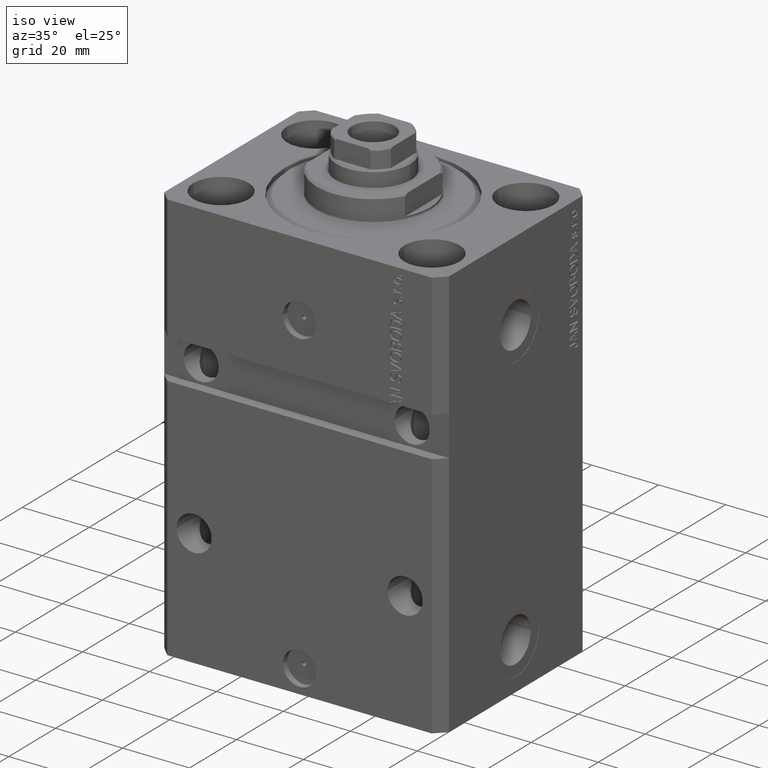
[diagram: clean part render]
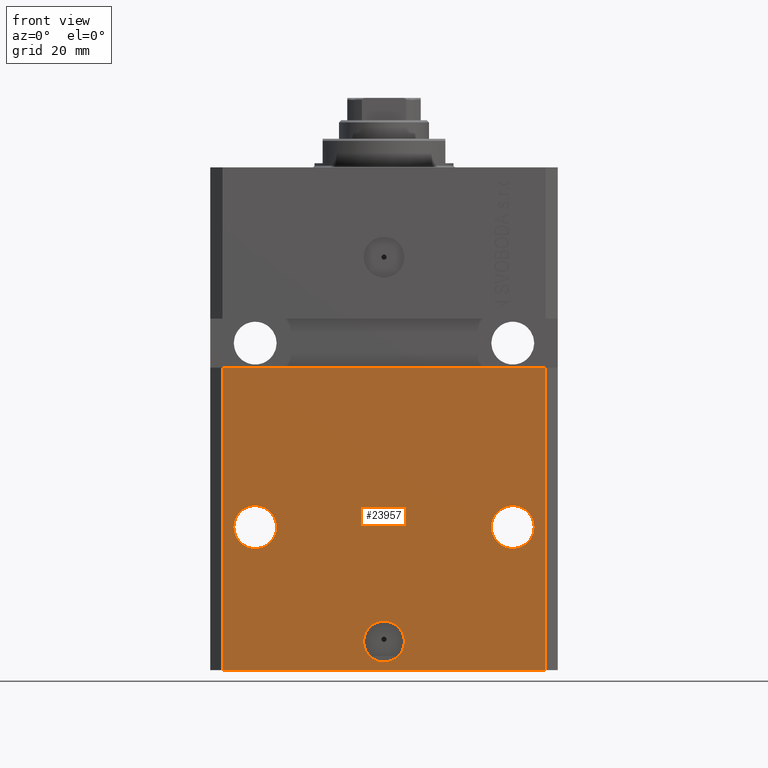
[diagram: tour spotlight — one face highlighted and labeled with its STEP entity id]
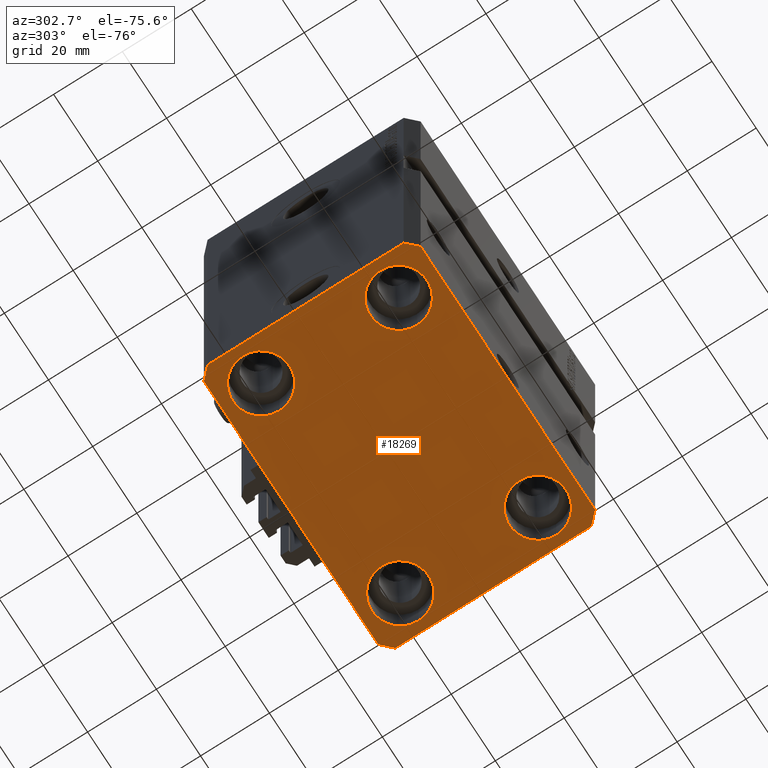
[diagram: tour spotlight — one face highlighted and labeled with its STEP entity id]
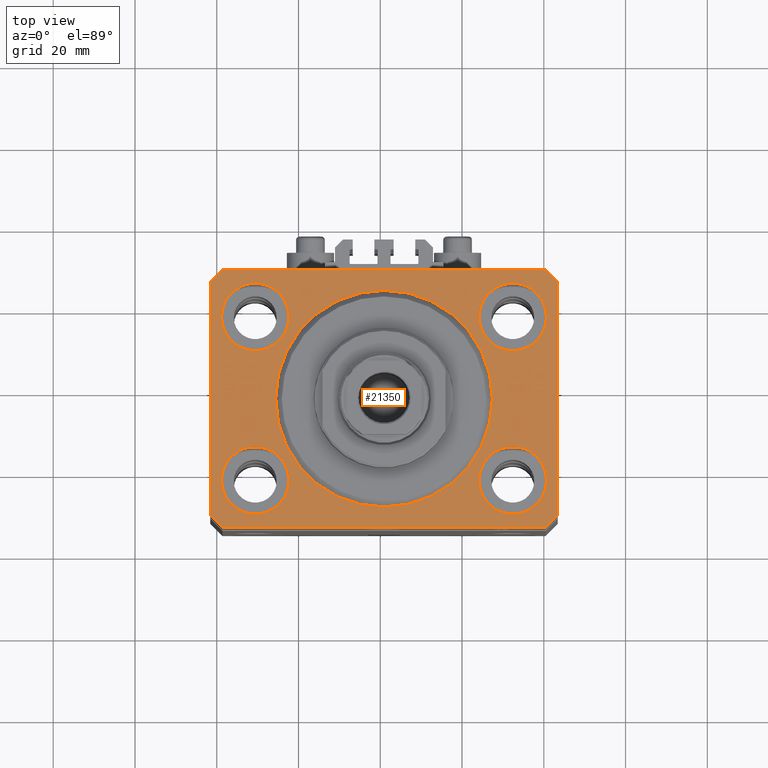
[diagram: tour spotlight — one face highlighted and labeled with its STEP entity id]
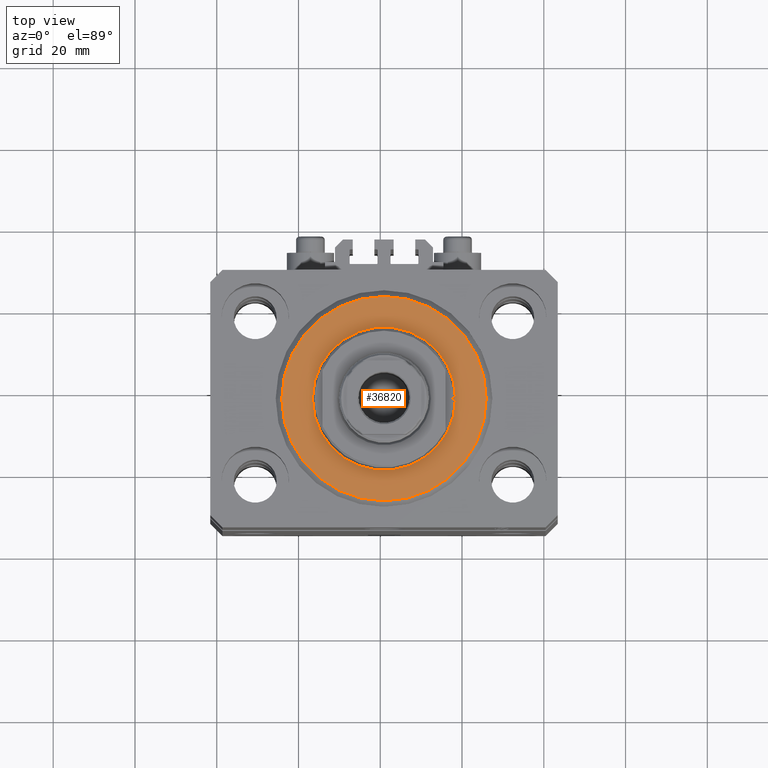
[diagram: tour spotlight — one face highlighted and labeled with its STEP entity id]
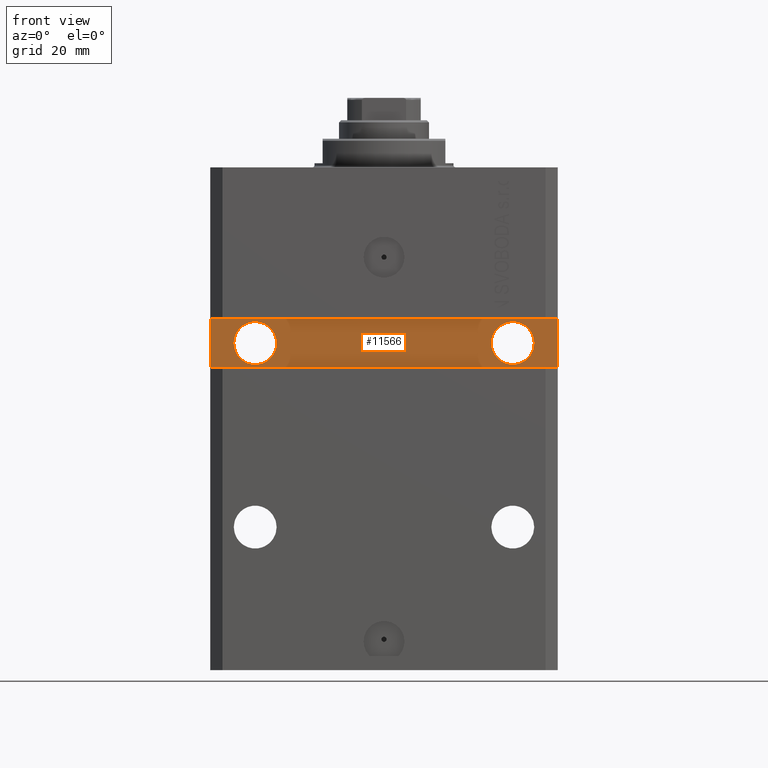
[diagram: tour spotlight — one face highlighted and labeled with its STEP entity id]
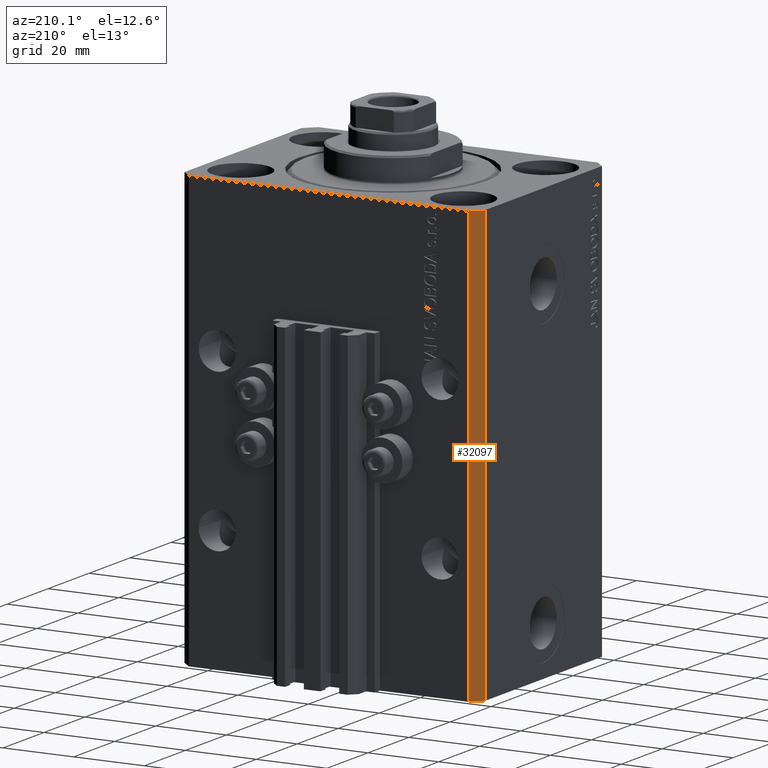
[diagram: tour spotlight — one face highlighted and labeled with its STEP entity id]
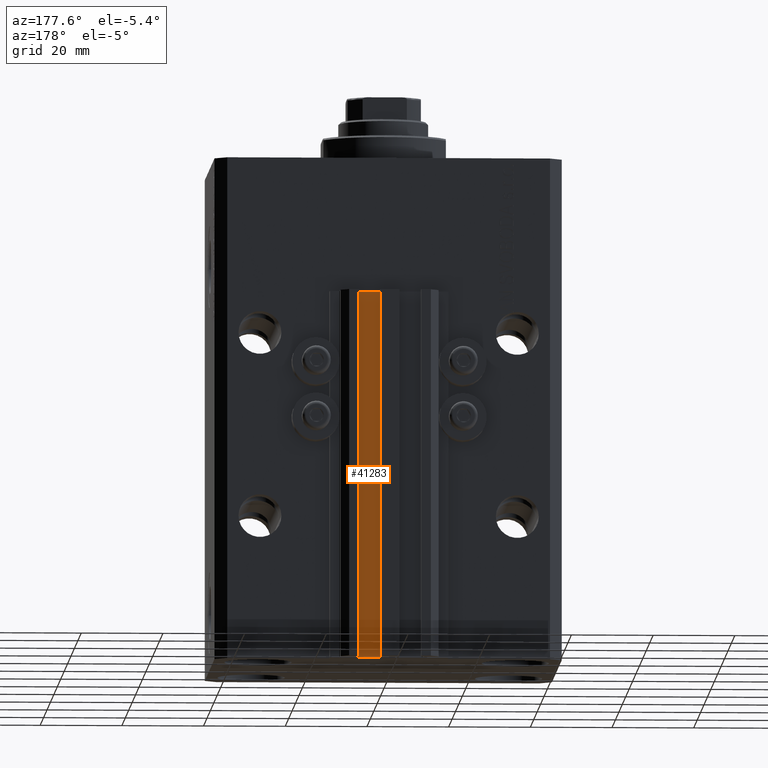
[diagram: tour spotlight — one face highlighted and labeled with its STEP entity id]
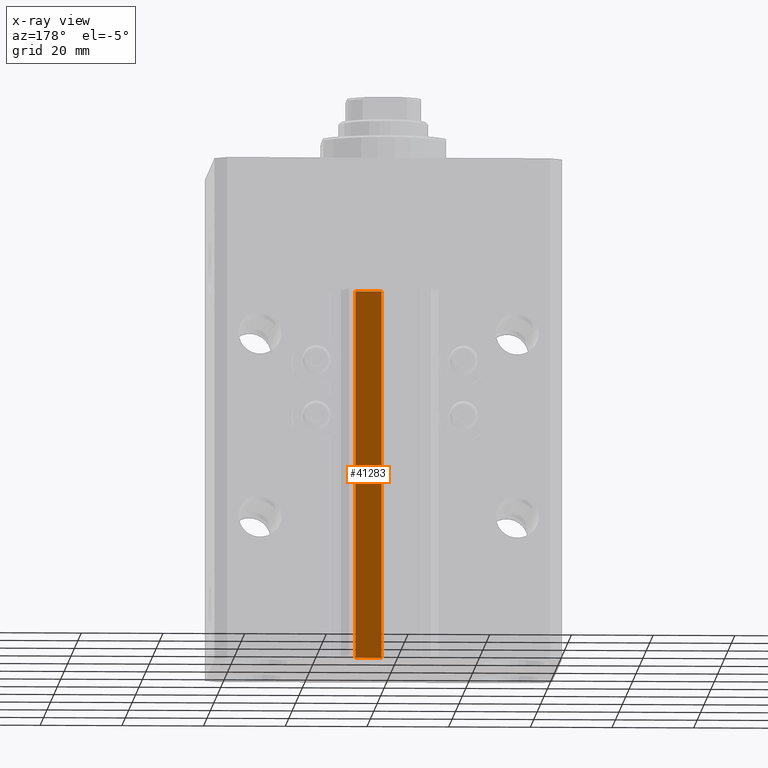
[diagram: x-ray of the same camera — body ghosted, this tour face saturated]
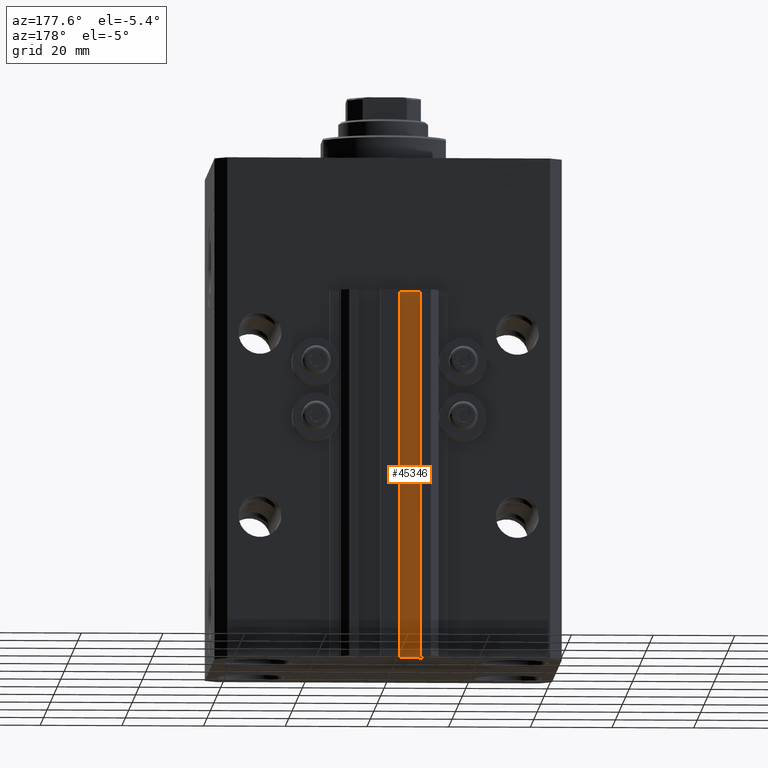
[diagram: tour spotlight — one face highlighted and labeled with its STEP entity id]
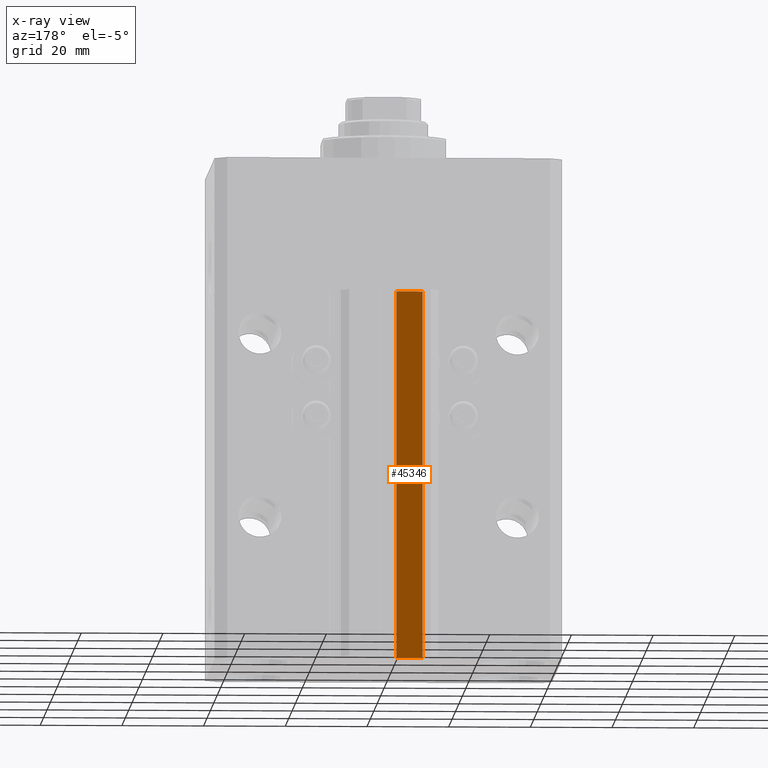
[diagram: x-ray of the same camera — body ghosted, this tour face saturated]
A machine part: a face-by-face anatomy tour. The part has 1123 B-rep faces; the first image is the clean iso view, then the 8 largest visible faces are spotlighted one at a time (largest first), each with its STEP entity span.

Face 1 — front view, entity #23957. In plain terms, the highlighted planar face has unit normal (0, -1, 0).
Definition (entity closure, byte-faithful):
#449 = FACE_BOUND ( 'NONE', #35979, .T. ) ;
#878 = CIRCLE ( 'NONE', #19730, 5.249999999999997335 ) ;
#958 = AXIS2_PLACEMENT_3D ( 'NONE', #14286, #29783, #13809 ) ;
#1396 = VERTEX_POINT ( 'NONE', #4002 ) ;
#3035 = ORIENTED_EDGE ( 'NONE', *, *, #15015, .F. ) ;
#3785 = CARTESIAN_POINT ( 'NONE',  ( -31.50000000000001421, -31.50000000000000711, -88.00000000000000000 ) ) ;
#4002 = CARTESIAN_POINT ( 'NONE',  ( 36.75000000000001421, -31.49999999999999289, -88.00000000000000000 ) ) ;
#4346 = EDGE_CURVE ( 'NONE', #21004, #5934, #15466, .T. ) ;
#5028 = AXIS2_PLACEMENT_3D ( 'NONE', #3785, #29595, #11396 ) ;
#5934 = VERTEX_POINT ( 'NONE', #12399 ) ;
#7787 = AXIS2_PLACEMENT_3D ( 'NONE', #28179, #31407, #42966 ) ;
#8191 = EDGE_LOOP ( 'NONE', ( #3035, #19538 ) ) ;
#8284 = CARTESIAN_POINT ( 'NONE',  ( -31.50000000000001421, -31.50000000000000711, -88.00000000000000000 ) ) ;
#8554 = CARTESIAN_POINT ( 'NONE',  ( -39.50000000000000711, -31.50000000000000000, -123.0000000000000000 ) ) ;
#9351 = EDGE_CURVE ( 'NONE', #36908, #42533, #33871, .T. ) ;
#9419 = EDGE_CURVE ( 'NONE', #40679, #28496, #878, .T. ) ;
#9873 = DIRECTION ( 'NONE',  ( 1.000000000000000000, 0.000000000000000000, 0.000000000000000000 ) ) ;
#11137 = CARTESIAN_POINT ( 'NONE',  ( -26.25000000000001776, -31.50000000000000711, -88.00000000000000000 ) ) ;
#11223 = DIRECTION ( 'NONE',  ( -1.000000000000000000, 0.000000000000000000, 0.000000000000000000 ) ) ;
#11396 = DIRECTION ( 'NONE',  ( -1.000000000000000000, 0.000000000000000000, 0.000000000000000000 ) ) ;
#11695 = EDGE_LOOP ( 'NONE', ( #33981, #22455 ) ) ;
#11747 = AXIS2_PLACEMENT_3D ( 'NONE', #20092, #19601, #46641 ) ;
#11940 = CIRCLE ( 'NONE', #958, 5.249999999999997335 ) ;
#12399 = CARTESIAN_POINT ( 'NONE',  ( -39.50000000000000000, -31.50000000000000711, -48.99999999999999289 ) ) ;
#13675 = EDGE_CURVE ( 'NONE', #18573, #20759, #40290, .T. ) ;
#13809 = DIRECTION ( 'NONE',  ( 1.000000000000000000, 0.000000000000000000, 0.000000000000000000 ) ) ;
#14286 = CARTESIAN_POINT ( 'NONE',  ( 31.50000000000001421, -31.49999999999999289, -88.00000000000000000 ) ) ;
#15015 = EDGE_CURVE ( 'NONE', #28496, #40679, #42737, .T. ) ;
#15447 = FACE_BOUND ( 'NONE', #8191, .T. ) ;
#15466 = LINE ( 'NONE', #48419, #21226 ) ;
#15543 = ORIENTED_EDGE ( 'NONE', *, *, #34785, .T. ) ;
#16598 = ORIENTED_EDGE ( 'NONE', *, *, #39903, .F. ) ;
#17175 = CARTESIAN_POINT ( 'NONE',  ( 39.50000000000000711, -31.50000000000000000, -123.0000000000000000 ) ) ;
#17219 = DIRECTION ( 'NONE',  ( 1.000000000000000000, 0.000000000000000000, 0.000000000000000000 ) ) ;
#17229 = EDGE_CURVE ( 'NONE', #5934, #20759, #29986, .T. ) ;
#17458 = CARTESIAN_POINT ( 'NONE',  ( 0.000000000000000000, -31.50000000000000000, -115.9999999999999858 ) ) ;
#18573 = VERTEX_POINT ( 'NONE', #27766 ) ;
#19327 = VECTOR ( 'NONE', #41805, 1000.000000000000000 ) ;
#19538 = ORIENTED_EDGE ( 'NONE', *, *, #9419, .F. ) ;
#19601 = DIRECTION ( 'NONE',  ( 1.176083712526788232E-16, -1.000000000000000000, 0.000000000000000000 ) ) ;
#19730 = AXIS2_PLACEMENT_3D ( 'NONE', #8284, #45921, #11223 ) ;
#20092 = CARTESIAN_POINT ( 'NONE',  ( 31.50000000000001421, -31.49999999999999289, -88.00000000000000000 ) ) ;
#20634 = VECTOR ( 'NONE', #25028, 1000.000000000000000 ) ;
#20759 = VERTEX_POINT ( 'NONE', #34918 ) ;
#21004 = VERTEX_POINT ( 'NONE', #29185 ) ;
#21226 = VECTOR ( 'NONE', #44980, 1000.000000000000000 ) ;
#21391 = DIRECTION ( 'NONE',  ( 1.176083712526788232E-16, -1.000000000000000000, 0.000000000000000000 ) ) ;
#22455 = ORIENTED_EDGE ( 'NONE', *, *, #41065, .F. ) ;
#23069 = PLANE ( 'NONE',  #29288 ) ;
#23957 = ADVANCED_FACE ( 'NONE', ( #449, #38827, #15447, #41523 ), #23069, .T. ) ;
#25028 = DIRECTION ( 'NONE',  ( 0.000000000000000000, 0.000000000000000000, 1.000000000000000000 ) ) ;
#25588 = CARTESIAN_POINT ( 'NONE',  ( -39.50000000000000711, -31.50000000000000000, -123.0000000000000000 ) ) ;
#27388 = EDGE_LOOP ( 'NONE', ( #27434, #35310, #15543, #45869 ) ) ;
#27434 = ORIENTED_EDGE ( 'NONE', *, *, #17229, .F. ) ;
#27766 = CARTESIAN_POINT ( 'NONE',  ( 39.50000000000000711, -31.50000000000000000, -123.0000000000000000 ) ) ;
#28179 = CARTESIAN_POINT ( 'NONE',  ( 0.000000000000000000, -31.50000000000000000, -115.9999999999999858 ) ) ;
#28496 = VERTEX_POINT ( 'NONE', #11137 ) ;
#29059 = CARTESIAN_POINT ( 'NONE',  ( 26.25000000000001776, -31.49999999999999289, -88.00000000000000000 ) ) ;
#29185 = CARTESIAN_POINT ( 'NONE',  ( -39.50000000000000711, -31.50000000000000000, -123.0000000000000000 ) ) ;
#29288 = AXIS2_PLACEMENT_3D ( 'NONE', #8554, #45457, #46191 ) ;
#29595 = DIRECTION ( 'NONE',  ( 1.176083712526788232E-16, -1.000000000000000000, 0.000000000000000000 ) ) ;
#29783 = DIRECTION ( 'NONE',  ( 1.176083712526788232E-16, -1.000000000000000000, 0.000000000000000000 ) ) ;
#29986 = LINE ( 'NONE', #37134, #19327 ) ;
#31326 = CARTESIAN_POINT ( 'NONE',  ( 5.000000000000006217, -31.50000000000000000, -115.9999999999999858 ) ) ;
#31407 = DIRECTION ( 'NONE',  ( 1.176083712526788232E-16, -1.000000000000000000, 0.000000000000000000 ) ) ;
#32135 = ORIENTED_EDGE ( 'NONE', *, *, #9351, .F. ) ;
#32269 = AXIS2_PLACEMENT_3D ( 'NONE', #17458, #21391, #17219 ) ;
#33871 = CIRCLE ( 'NONE', #32269, 5.000000000000006217 ) ;
#33981 = ORIENTED_EDGE ( 'NONE', *, *, #44283, .F. ) ;
#34785 = EDGE_CURVE ( 'NONE', #21004, #18573, #40612, .T. ) ;
#34918 = CARTESIAN_POINT ( 'NONE',  ( 39.50000000000001421, -31.49999999999999289, -48.99999999999997868 ) ) ;
#35310 = ORIENTED_EDGE ( 'NONE', *, *, #4346, .F. ) ;
#35979 = EDGE_LOOP ( 'NONE', ( #32135, #16598 ) ) ;
#36908 = VERTEX_POINT ( 'NONE', #31326 ) ;
#37134 = CARTESIAN_POINT ( 'NONE',  ( -42.50000000000000000, -31.50000000000000711, -48.99999999999999289 ) ) ;
#38827 = FACE_BOUND ( 'NONE', #11695, .T. ) ;
#39903 = EDGE_CURVE ( 'NONE', #42533, #36908, #42353, .T. ) ;
#40290 = LINE ( 'NONE', #17175, #20634 ) ;
#40612 = LINE ( 'NONE', #25588, #46865 ) ;
#40679 = VERTEX_POINT ( 'NONE', #44991 ) ;
#41065 = EDGE_CURVE ( 'NONE', #45206, #1396, #44712, .T. ) ;
#41523 = FACE_OUTER_BOUND ( 'NONE', #27388, .T. ) ;
#41805 = DIRECTION ( 'NONE',  ( 1.000000000000000000, 1.632680918566406300E-16, 1.632680918566406300E-16 ) ) ;
#42353 = CIRCLE ( 'NONE', #7787, 5.000000000000006217 ) ;
#42533 = VERTEX_POINT ( 'NONE', #44342 ) ;
#42737 = CIRCLE ( 'NONE', #5028, 5.249999999999997335 ) ;
#42966 = DIRECTION ( 'NONE',  ( 1.000000000000000000, 0.000000000000000000, 0.000000000000000000 ) ) ;
#44283 = EDGE_CURVE ( 'NONE', #1396, #45206, #11940, .T. ) ;
#44342 = CARTESIAN_POINT ( 'NONE',  ( -5.000000000000006217, -31.50000000000000000, -115.9999999999999858 ) ) ;
#44712 = CIRCLE ( 'NONE', #11747, 5.249999999999997335 ) ;
#44980 = DIRECTION ( 'NONE',  ( 0.000000000000000000, 0.000000000000000000, 1.000000000000000000 ) ) ;
#44991 = CARTESIAN_POINT ( 'NONE',  ( -36.75000000000001421, -31.50000000000000711, -88.00000000000000000 ) ) ;
#45206 = VERTEX_POINT ( 'NONE', #29059 ) ;
#45457 = DIRECTION ( 'NONE',  ( 0.000000000000000000, -1.000000000000000000, 0.000000000000000000 ) ) ;
#45869 = ORIENTED_EDGE ( 'NONE', *, *, #13675, .T. ) ;
#45921 = DIRECTION ( 'NONE',  ( 1.176083712526788232E-16, -1.000000000000000000, 0.000000000000000000 ) ) ;
#46191 = DIRECTION ( 'NONE',  ( 0.000000000000000000, -0.000000000000000000, -1.000000000000000000 ) ) ;
#46641 = DIRECTION ( 'NONE',  ( 1.000000000000000000, 0.000000000000000000, 0.000000000000000000 ) ) ;
#46865 = VECTOR ( 'NONE', #9873, 1000.000000000000000 ) ;
#48419 = CARTESIAN_POINT ( 'NONE',  ( -39.50000000000000711, -31.50000000000000000, -123.0000000000000000 ) ) ;

Face 2 — auxiliary view, entity #18269. In plain terms, the highlighted planar face has unit normal (0, 0, 1).
Definition (entity closure, byte-faithful):
#670 = CARTESIAN_POINT ( 'NONE',  ( -42.50000000000000000, -28.50000000000000000, -123.0000000000000000 ) ) ;
#802 = CIRCLE ( 'NONE', #4739, 8.250000000000000000 ) ;
#1290 = EDGE_CURVE ( 'NONE', #7273, #21085, #23481, .T. ) ;
#1763 = AXIS2_PLACEMENT_3D ( 'NONE', #31644, #39987, #21281 ) ;
#2016 = CARTESIAN_POINT ( 'NONE',  ( -23.25000000000000000, 20.00000000000000000, -123.0000000000000000 ) ) ;
#3148 = AXIS2_PLACEMENT_3D ( 'NONE', #7656, #22899, #33722 ) ;
#3277 = AXIS2_PLACEMENT_3D ( 'NONE', #30251, #7621, #41572 ) ;
#3332 = CIRCLE ( 'NONE', #1763, 8.249999999999992895 ) ;
#3422 = CARTESIAN_POINT ( 'NONE',  ( 42.50000000000051870, 28.49999999999995381, -123.0000000000000000 ) ) ;
#3908 = EDGE_LOOP ( 'NONE', ( #28626, #21399 ) ) ;
#3987 = VERTEX_POINT ( 'NONE', #26083 ) ;
#4022 = EDGE_CURVE ( 'NONE', #6822, #24589, #18883, .T. ) ;
#4286 = CIRCLE ( 'NONE', #35748, 8.249999999999992895 ) ;
#4739 = AXIS2_PLACEMENT_3D ( 'NONE', #43965, #40269, #6568 ) ;
#5517 = DIRECTION ( 'NONE',  ( 1.000000000000000000, 0.000000000000000000, 0.000000000000000000 ) ) ;
#6483 = CARTESIAN_POINT ( 'NONE',  ( -39.75000000000000000, -20.00000000000000000, -123.0000000000000000 ) ) ;
#6568 = DIRECTION ( 'NONE',  ( 1.000000000000000000, 0.000000000000000000, 0.000000000000000000 ) ) ;
#6637 = EDGE_CURVE ( 'NONE', #3987, #16590, #25551, .T. ) ;
#6793 = EDGE_CURVE ( 'NONE', #6973, #3987, #23827, .T. ) ;
#6822 = VERTEX_POINT ( 'NONE', #45719 ) ;
#6890 = EDGE_CURVE ( 'NONE', #18573, #6973, #20854, .T. ) ;
#6973 = VERTEX_POINT ( 'NONE', #40752 ) ;
#6997 = FACE_OUTER_BOUND ( 'NONE', #35642, .T. ) ;
#7029 = EDGE_CURVE ( 'NONE', #24589, #6822, #802, .T. ) ;
#7237 = DIRECTION ( 'NONE',  ( 0.000000000000000000, 0.000000000000000000, 1.000000000000000000 ) ) ;
#7273 = VERTEX_POINT ( 'NONE', #40210 ) ;
#7621 = DIRECTION ( 'NONE',  ( -0.000000000000000000, -0.000000000000000000, 1.000000000000000000 ) ) ;
#7656 = CARTESIAN_POINT ( 'NONE',  ( -31.50000000000000000, 20.00000000000000000, -123.0000000000000000 ) ) ;
#7783 = DIRECTION ( 'NONE',  ( -0.7071067811865471286, -0.7071067811865479058, 0.000000000000000000 ) ) ;
#8332 = DIRECTION ( 'NONE',  ( 8.886653596232072440E-15, 1.000000000000000000, 0.000000000000000000 ) ) ;
#8496 = ORIENTED_EDGE ( 'NONE', *, *, #11471, .T. ) ;
#8666 = VECTOR ( 'NONE', #8332, 1000.000000000000000 ) ;
#8735 = CARTESIAN_POINT ( 'NONE',  ( 31.50000000000000000, -20.00000000000000000, -123.0000000000000000 ) ) ;
#9042 = EDGE_CURVE ( 'NONE', #36581, #26871, #36995, .T. ) ;
#9350 = DIRECTION ( 'NONE',  ( -1.000000000000000000, 0.000000000000000000, 0.000000000000000000 ) ) ;
#9551 = ORIENTED_EDGE ( 'NONE', *, *, #1290, .F. ) ;
#9873 = DIRECTION ( 'NONE',  ( 1.000000000000000000, 0.000000000000000000, 0.000000000000000000 ) ) ;
#11471 = EDGE_CURVE ( 'NONE', #46393, #24452, #41778, .T. ) ;
#11665 = DIRECTION ( 'NONE',  ( 1.000000000000000000, 0.000000000000000000, -0.000000000000000000 ) ) ;
#12876 = AXIS2_PLACEMENT_3D ( 'NONE', #48056, #14351, #17334 ) ;
#13221 = DIRECTION ( 'NONE',  ( 0.7071067811865483499, 0.7071067811865466846, 0.000000000000000000 ) ) ;
#13929 = CARTESIAN_POINT ( 'NONE',  ( 23.25000000000000355, 20.00000000000001066, -123.0000000000000000 ) ) ;
#14351 = DIRECTION ( 'NONE',  ( -0.000000000000000000, -0.000000000000000000, 1.000000000000000000 ) ) ;
#14608 = CARTESIAN_POINT ( 'NONE',  ( 0.000000000000000000, 0.000000000000000000, -123.0000000000000000 ) ) ;
#15391 = CIRCLE ( 'NONE', #42892, 8.250000000000000000 ) ;
#15446 = EDGE_CURVE ( 'NONE', #16390, #7273, #15898, .T. ) ;
#15668 = EDGE_CURVE ( 'NONE', #26871, #36581, #34086, .T. ) ;
#15898 = LINE ( 'NONE', #21629, #37200 ) ;
#16364 = DIRECTION ( 'NONE',  ( 1.000000000000000000, 0.000000000000000000, 0.000000000000000000 ) ) ;
#16390 = VERTEX_POINT ( 'NONE', #44743 ) ;
#16590 = VERTEX_POINT ( 'NONE', #21330 ) ;
#16758 = EDGE_LOOP ( 'NONE', ( #45826, #29480 ) ) ;
#17251 = ORIENTED_EDGE ( 'NONE', *, *, #21207, .T. ) ;
#17334 = DIRECTION ( 'NONE',  ( 1.000000000000000000, 0.000000000000000000, 0.000000000000000000 ) ) ;
#17721 = EDGE_CURVE ( 'NONE', #24452, #46393, #15391, .T. ) ;
#18269 = ADVANCED_FACE ( 'NONE', ( #18552, #30362, #19046, #18308, #6997 ), #44395, .F. ) ;
#18308 = FACE_BOUND ( 'NONE', #3908, .T. ) ;
#18552 = FACE_BOUND ( 'NONE', #28132, .T. ) ;
#18573 = VERTEX_POINT ( 'NONE', #27766 ) ;
#18883 = CIRCLE ( 'NONE', #3148, 8.250000000000000000 ) ;
#19046 = FACE_BOUND ( 'NONE', #16758, .T. ) ;
#19166 = ORIENTED_EDGE ( 'NONE', *, *, #6890, .F. ) ;
#19323 = DIRECTION ( 'NONE',  ( -0.000000000000000000, -0.000000000000000000, 1.000000000000000000 ) ) ;
#20338 = VECTOR ( 'NONE', #24208, 1000.000000000000000 ) ;
#20427 = CARTESIAN_POINT ( 'NONE',  ( 39.50000000000056843, 31.50000000000000000, -123.0000000000000000 ) ) ;
#20600 = CARTESIAN_POINT ( 'NONE',  ( 23.25000000000000355, -20.00000000000000000, -123.0000000000000000 ) ) ;
#20854 = LINE ( 'NONE', #46920, #46348 ) ;
#21004 = VERTEX_POINT ( 'NONE', #29185 ) ;
#21085 = VERTEX_POINT ( 'NONE', #670 ) ;
#21207 = EDGE_CURVE ( 'NONE', #21888, #36398, #3332, .T. ) ;
#21281 = DIRECTION ( 'NONE',  ( 1.000000000000000000, 0.000000000000000000, 0.000000000000000000 ) ) ;
#21330 = CARTESIAN_POINT ( 'NONE',  ( 39.50000000000056843, 31.50000000000000000, -123.0000000000000000 ) ) ;
#21390 = EDGE_CURVE ( 'NONE', #21085, #21004, #42175, .T. ) ;
#21399 = ORIENTED_EDGE ( 'NONE', *, *, #7029, .T. ) ;
#21629 = CARTESIAN_POINT ( 'NONE',  ( -39.50000000000000711, 31.50000000000000000, -123.0000000000000000 ) ) ;
#21888 = VERTEX_POINT ( 'NONE', #30435 ) ;
#22838 = EDGE_LOOP ( 'NONE', ( #36892, #17251 ) ) ;
#22899 = DIRECTION ( 'NONE',  ( -0.000000000000000000, -0.000000000000000000, 1.000000000000000000 ) ) ;
#22984 = CARTESIAN_POINT ( 'NONE',  ( -42.50000000000000000, -28.50000000000000000, -123.0000000000000000 ) ) ;
#23481 = LINE ( 'NONE', #31589, #20338 ) ;
#23827 = LINE ( 'NONE', #38849, #8666 ) ;
#24204 = DIRECTION ( 'NONE',  ( -0.000000000000000000, -0.000000000000000000, 1.000000000000000000 ) ) ;
#24208 = DIRECTION ( 'NONE',  ( 0.000000000000000000, -1.000000000000000000, 0.000000000000000000 ) ) ;
#24452 = VERTEX_POINT ( 'NONE', #6483 ) ;
#24589 = VERTEX_POINT ( 'NONE', #2016 ) ;
#25551 = LINE ( 'NONE', #3422, #25876 ) ;
#25588 = CARTESIAN_POINT ( 'NONE',  ( -39.50000000000000711, -31.50000000000000000, -123.0000000000000000 ) ) ;
#25876 = VECTOR ( 'NONE', #48178, 1000.000000000000114 ) ;
#26083 = CARTESIAN_POINT ( 'NONE',  ( 42.50000000000051870, 28.49999999999995381, -123.0000000000000000 ) ) ;
#26871 = VERTEX_POINT ( 'NONE', #36612 ) ;
#27296 = EDGE_CURVE ( 'NONE', #36398, #21888, #4286, .T. ) ;
#27766 = CARTESIAN_POINT ( 'NONE',  ( 39.50000000000000711, -31.50000000000000000, -123.0000000000000000 ) ) ;
#28132 = EDGE_LOOP ( 'NONE', ( #30328, #8496 ) ) ;
#28626 = ORIENTED_EDGE ( 'NONE', *, *, #4022, .T. ) ;
#29185 = CARTESIAN_POINT ( 'NONE',  ( -39.50000000000000711, -31.50000000000000000, -123.0000000000000000 ) ) ;
#29224 = AXIS2_PLACEMENT_3D ( 'NONE', #14608, #7237, #11665 ) ;
#29330 = VECTOR ( 'NONE', #30610, 1000.000000000000000 ) ;
#29480 = ORIENTED_EDGE ( 'NONE', *, *, #15668, .T. ) ;
#30251 = CARTESIAN_POINT ( 'NONE',  ( -31.50000000000000000, -20.00000000000000000, -123.0000000000000000 ) ) ;
#30328 = ORIENTED_EDGE ( 'NONE', *, *, #17721, .T. ) ;
#30362 = FACE_BOUND ( 'NONE', #22838, .T. ) ;
#30435 = CARTESIAN_POINT ( 'NONE',  ( 39.74999999999999289, -20.00000000000000000, -123.0000000000000000 ) ) ;
#30610 = DIRECTION ( 'NONE',  ( 0.7071067811865471286, -0.7071067811865479058, 0.000000000000000000 ) ) ;
#31589 = CARTESIAN_POINT ( 'NONE',  ( -42.50000000000000000, 28.50000000000000000, -123.0000000000000000 ) ) ;
#31644 = CARTESIAN_POINT ( 'NONE',  ( 31.50000000000000000, -20.00000000000000000, -123.0000000000000000 ) ) ;
#33722 = DIRECTION ( 'NONE',  ( 1.000000000000000000, 0.000000000000000000, 0.000000000000000000 ) ) ;
#34086 = CIRCLE ( 'NONE', #12876, 8.249999999999992895 ) ;
#34785 = EDGE_CURVE ( 'NONE', #21004, #18573, #40612, .T. ) ;
#35615 = CARTESIAN_POINT ( 'NONE',  ( -23.25000000000000000, -20.00000000000000000, -123.0000000000000000 ) ) ;
#35642 = EDGE_LOOP ( 'NONE', ( #44269, #42650, #39190, #19166, #44360, #46831, #9551, #42834 ) ) ;
#35748 = AXIS2_PLACEMENT_3D ( 'NONE', #8735, #19323, #16364 ) ;
#36398 = VERTEX_POINT ( 'NONE', #20600 ) ;
#36581 = VERTEX_POINT ( 'NONE', #13929 ) ;
#36612 = CARTESIAN_POINT ( 'NONE',  ( 39.74999999999999289, 20.00000000000001066, -123.0000000000000000 ) ) ;
#36751 = DIRECTION ( 'NONE',  ( -0.000000000000000000, -0.000000000000000000, 1.000000000000000000 ) ) ;
#36892 = ORIENTED_EDGE ( 'NONE', *, *, #27296, .T. ) ;
#36995 = CIRCLE ( 'NONE', #42530, 8.249999999999992895 ) ;
#37200 = VECTOR ( 'NONE', #7783, 1000.000000000000000 ) ;
#37499 = EDGE_CURVE ( 'NONE', #16590, #16390, #38653, .T. ) ;
#38653 = LINE ( 'NONE', #20427, #43812 ) ;
#38849 = CARTESIAN_POINT ( 'NONE',  ( 42.50000000000000711, -28.50000000000000355, -123.0000000000000000 ) ) ;
#39190 = ORIENTED_EDGE ( 'NONE', *, *, #6793, .F. ) ;
#39987 = DIRECTION ( 'NONE',  ( -0.000000000000000000, -0.000000000000000000, 1.000000000000000000 ) ) ;
#40210 = CARTESIAN_POINT ( 'NONE',  ( -42.50000000000000000, 28.50000000000000000, -123.0000000000000000 ) ) ;
#40269 = DIRECTION ( 'NONE',  ( -0.000000000000000000, -0.000000000000000000, 1.000000000000000000 ) ) ;
#40612 = LINE ( 'NONE', #25588, #46865 ) ;
#40752 = CARTESIAN_POINT ( 'NONE',  ( 42.50000000000000711, -28.50000000000000355, -123.0000000000000000 ) ) ;
#41572 = DIRECTION ( 'NONE',  ( 1.000000000000000000, 0.000000000000000000, 0.000000000000000000 ) ) ;
#41778 = CIRCLE ( 'NONE', #3277, 8.250000000000000000 ) ;
#42175 = LINE ( 'NONE', #22984, #29330 ) ;
#42530 = AXIS2_PLACEMENT_3D ( 'NONE', #46590, #24204, #5517 ) ;
#42650 = ORIENTED_EDGE ( 'NONE', *, *, #6637, .F. ) ;
#42834 = ORIENTED_EDGE ( 'NONE', *, *, #15446, .F. ) ;
#42892 = AXIS2_PLACEMENT_3D ( 'NONE', #44373, #36751, #47814 ) ;
#43812 = VECTOR ( 'NONE', #9350, 1000.000000000000000 ) ;
#43965 = CARTESIAN_POINT ( 'NONE',  ( -31.50000000000000000, 20.00000000000000000, -123.0000000000000000 ) ) ;
#44269 = ORIENTED_EDGE ( 'NONE', *, *, #37499, .F. ) ;
#44360 = ORIENTED_EDGE ( 'NONE', *, *, #34785, .F. ) ;
#44373 = CARTESIAN_POINT ( 'NONE',  ( -31.50000000000000000, -20.00000000000000000, -123.0000000000000000 ) ) ;
#44395 = PLANE ( 'NONE',  #29224 ) ;
#44743 = CARTESIAN_POINT ( 'NONE',  ( -39.50000000000000711, 31.50000000000000000, -123.0000000000000000 ) ) ;
#45719 = CARTESIAN_POINT ( 'NONE',  ( -39.75000000000000000, 20.00000000000000000, -123.0000000000000000 ) ) ;
#45826 = ORIENTED_EDGE ( 'NONE', *, *, #9042, .T. ) ;
#46348 = VECTOR ( 'NONE', #13221, 1000.000000000000000 ) ;
#46393 = VERTEX_POINT ( 'NONE', #35615 ) ;
#46590 = CARTESIAN_POINT ( 'NONE',  ( 31.50000000000000000, 20.00000000000001066, -123.0000000000000000 ) ) ;
#46831 = ORIENTED_EDGE ( 'NONE', *, *, #21390, .F. ) ;
#46865 = VECTOR ( 'NONE', #9873, 1000.000000000000000 ) ;
#46920 = CARTESIAN_POINT ( 'NONE',  ( 39.50000000000000711, -31.50000000000000000, -123.0000000000000000 ) ) ;
#47814 = DIRECTION ( 'NONE',  ( 1.000000000000000000, 0.000000000000000000, 0.000000000000000000 ) ) ;
#48056 = CARTESIAN_POINT ( 'NONE',  ( 31.50000000000000000, 20.00000000000001066, -123.0000000000000000 ) ) ;
#48178 = DIRECTION ( 'NONE',  ( -0.7071067811865356934, 0.7071067811865594521, 0.000000000000000000 ) ) ;

Face 3 — top view, entity #21350. In plain terms, the highlighted planar face has unit normal (0, 0, 1).
Definition (entity closure, byte-faithful):
#3 = CARTESIAN_POINT ( 'NONE',  ( 0.000000000000000000, 0.000000000000000000, 0.000000000000000000 ) ) ;
#348 = VERTEX_POINT ( 'NONE', #18686 ) ;
#452 = VERTEX_POINT ( 'NONE', #42062 ) ;
#851 = FACE_BOUND ( 'NONE', #14245, .T. ) ;
#1065 = CIRCLE ( 'NONE', #5759, 8.250000000000000000 ) ;
#1419 = VERTEX_POINT ( 'NONE', #30315 ) ;
#1434 = EDGE_CURVE ( 'NONE', #44893, #11532, #11690, .T. ) ;
#1614 = DIRECTION ( 'NONE',  ( 0.000000000000000000, 0.000000000000000000, 1.000000000000000000 ) ) ;
#2149 = CARTESIAN_POINT ( 'NONE',  ( -31.50000000000000000, 20.00000000000000000, 0.000000000000000000 ) ) ;
#2287 = DIRECTION ( 'NONE',  ( 0.000000000000000000, 0.000000000000000000, 1.000000000000000000 ) ) ;
#2306 = VERTEX_POINT ( 'NONE', #36975 ) ;
#3515 = DIRECTION ( 'NONE',  ( 0.7071067811865483499, 0.7071067811865466846, 0.000000000000000000 ) ) ;
#3569 = EDGE_CURVE ( 'NONE', #20836, #47736, #27067, .T. ) ;
#4246 = CARTESIAN_POINT ( 'NONE',  ( 31.50000000000000000, -20.00000000000000000, 0.000000000000000000 ) ) ;
#4684 = EDGE_CURVE ( 'NONE', #11220, #452, #27530, .T. ) ;
#4900 = DIRECTION ( 'NONE',  ( 1.000000000000000000, 0.000000000000000000, 0.000000000000000000 ) ) ;
#5153 = DIRECTION ( 'NONE',  ( 0.000000000000000000, 0.000000000000000000, 1.000000000000000000 ) ) ;
#5286 = CARTESIAN_POINT ( 'NONE',  ( 31.50000000000000000, 20.00000000000001066, 0.000000000000000000 ) ) ;
#5478 = CARTESIAN_POINT ( 'NONE',  ( 31.50000000000000000, -20.00000000000000000, 0.000000000000000000 ) ) ;
#5759 = AXIS2_PLACEMENT_3D ( 'NONE', #26126, #45325, #37462 ) ;
#5807 = DIRECTION ( 'NONE',  ( 0.000000000000000000, 0.000000000000000000, 1.000000000000000000 ) ) ;
#5865 = LINE ( 'NONE', #9315, #34063 ) ;
#6470 = CIRCLE ( 'NONE', #45745, 8.250000000000000000 ) ;
#6699 = CIRCLE ( 'NONE', #34206, 8.250000000000000000 ) ;
#7192 = CARTESIAN_POINT ( 'NONE',  ( 39.50000000000000711, -31.50000000000000000, 0.000000000000000000 ) ) ;
#7380 = DIRECTION ( 'NONE',  ( 1.000000000000000000, 0.000000000000000000, 0.000000000000000000 ) ) ;
#7439 = ORIENTED_EDGE ( 'NONE', *, *, #39939, .F. ) ;
#7715 = VECTOR ( 'NONE', #48120, 1000.000000000000000 ) ;
#7847 = EDGE_LOOP ( 'NONE', ( #12050, #28844, #11121, #29504, #44599, #21010, #48173, #27893 ) ) ;
#8150 = AXIS2_PLACEMENT_3D ( 'NONE', #34793, #38254, #8715 ) ;
#8228 = CARTESIAN_POINT ( 'NONE',  ( -42.50000000000000000, -28.50000000000000000, 0.000000000000000000 ) ) ;
#8715 = DIRECTION ( 'NONE',  ( 1.000000000000000000, 0.000000000000000000, -0.000000000000000000 ) ) ;
#9075 = CARTESIAN_POINT ( 'NONE',  ( -39.50000000000000711, -31.50000000000000000, 0.000000000000000000 ) ) ;
#9083 = EDGE_CURVE ( 'NONE', #43614, #2306, #47971, .T. ) ;
#9315 = CARTESIAN_POINT ( 'NONE',  ( 42.50000000000051870, 28.49999999999995381, 0.000000000000000000 ) ) ;
#10966 = VECTOR ( 'NONE', #20182, 1000.000000000000000 ) ;
#11121 = ORIENTED_EDGE ( 'NONE', *, *, #13964, .T. ) ;
#11155 = CARTESIAN_POINT ( 'NONE',  ( 39.50000000000000711, -31.50000000000000000, 0.000000000000000000 ) ) ;
#11220 = VERTEX_POINT ( 'NONE', #12590 ) ;
#11532 = VERTEX_POINT ( 'NONE', #20400 ) ;
#11668 = FACE_BOUND ( 'NONE', #43650, .T. ) ;
#11690 = CIRCLE ( 'NONE', #31364, 8.249999999999992895 ) ;
#11880 = ORIENTED_EDGE ( 'NONE', *, *, #38311, .F. ) ;
#12024 = CARTESIAN_POINT ( 'NONE',  ( -31.50000000000000000, 20.00000000000000000, 0.000000000000000000 ) ) ;
#12050 = ORIENTED_EDGE ( 'NONE', *, *, #17501, .T. ) ;
#12119 = VERTEX_POINT ( 'NONE', #48550 ) ;
#12431 = VECTOR ( 'NONE', #37124, 1000.000000000000000 ) ;
#12496 = AXIS2_PLACEMENT_3D ( 'NONE', #43201, #5807, #27467 ) ;
#12590 = CARTESIAN_POINT ( 'NONE',  ( -39.75000000000000000, 20.00000000000000000, 0.000000000000000000 ) ) ;
#12712 = DIRECTION ( 'NONE',  ( 0.000000000000000000, -1.000000000000000000, 0.000000000000000000 ) ) ;
#12808 = EDGE_CURVE ( 'NONE', #452, #11220, #6470, .T. ) ;
#13238 = CARTESIAN_POINT ( 'NONE',  ( 39.50000000000056843, 31.50000000000000000, 0.000000000000000000 ) ) ;
#13964 = EDGE_CURVE ( 'NONE', #1419, #40370, #30927, .T. ) ;
#14000 = ORIENTED_EDGE ( 'NONE', *, *, #9083, .F. ) ;
#14021 = ORIENTED_EDGE ( 'NONE', *, *, #48551, .F. ) ;
#14245 = EDGE_LOOP ( 'NONE', ( #19482, #14021 ) ) ;
#15255 = EDGE_LOOP ( 'NONE', ( #42039, #31069 ) ) ;
#15764 = CARTESIAN_POINT ( 'NONE',  ( -39.75000000000000000, -20.00000000000000000, 0.000000000000000000 ) ) ;
#15853 = FACE_BOUND ( 'NONE', #40610, .T. ) ;
#16203 = VECTOR ( 'NONE', #47178, 1000.000000000000000 ) ;
#16614 = DIRECTION ( 'NONE',  ( 1.000000000000000000, 0.000000000000000000, 0.000000000000000000 ) ) ;
#16784 = DIRECTION ( 'NONE',  ( 1.000000000000000000, 0.000000000000000000, 0.000000000000000000 ) ) ;
#17154 = DIRECTION ( 'NONE',  ( 0.000000000000000000, 0.000000000000000000, 1.000000000000000000 ) ) ;
#17218 = VERTEX_POINT ( 'NONE', #44515 ) ;
#17398 = LINE ( 'NONE', #21326, #7715 ) ;
#17501 = EDGE_CURVE ( 'NONE', #17218, #28627, #24792, .T. ) ;
#17964 = VERTEX_POINT ( 'NONE', #45677 ) ;
#18628 = AXIS2_PLACEMENT_3D ( 'NONE', #5478, #35486, #16784 ) ;
#18686 = CARTESIAN_POINT ( 'NONE',  ( 26.50000000000000355, 0.000000000000000000, 0.000000000000000000 ) ) ;
#19482 = ORIENTED_EDGE ( 'NONE', *, *, #23695, .F. ) ;
#19786 = FACE_BOUND ( 'NONE', #44302, .T. ) ;
#19957 = DIRECTION ( 'NONE',  ( 1.000000000000000000, 0.000000000000000000, 0.000000000000000000 ) ) ;
#20182 = DIRECTION ( 'NONE',  ( 1.000000000000000000, 0.000000000000000000, 0.000000000000000000 ) ) ;
#20400 = CARTESIAN_POINT ( 'NONE',  ( 23.25000000000000355, -20.00000000000000000, 0.000000000000000000 ) ) ;
#20406 = EDGE_CURVE ( 'NONE', #47736, #17964, #33266, .T. ) ;
#20836 = VERTEX_POINT ( 'NONE', #9075 ) ;
#20910 = EDGE_CURVE ( 'NONE', #33245, #17218, #5865, .T. ) ;
#21010 = ORIENTED_EDGE ( 'NONE', *, *, #20406, .T. ) ;
#21295 = AXIS2_PLACEMENT_3D ( 'NONE', #5286, #2287, #47544 ) ;
#21326 = CARTESIAN_POINT ( 'NONE',  ( -39.50000000000000711, 31.50000000000000000, 0.000000000000000000 ) ) ;
#21350 = ADVANCED_FACE ( 'NONE', ( #851, #15853, #19786, #27160, #11668, #26914 ), #23471, .T. ) ;
#21865 = LINE ( 'NONE', #48179, #12431 ) ;
#22696 = CIRCLE ( 'NONE', #12496, 26.50000000000000355 ) ;
#22713 = EDGE_CURVE ( 'NONE', #12119, #348, #40270, .T. ) ;
#23471 = PLANE ( 'NONE',  #8150 ) ;
#23695 = EDGE_CURVE ( 'NONE', #26595, #31019, #1065, .T. ) ;
#24401 = CARTESIAN_POINT ( 'NONE',  ( -39.50000000000000711, 31.50000000000000000, 0.000000000000000000 ) ) ;
#24792 = LINE ( 'NONE', #13238, #16203 ) ;
#25738 = AXIS2_PLACEMENT_3D ( 'NONE', #34711, #30286, #19957 ) ;
#26126 = CARTESIAN_POINT ( 'NONE',  ( -31.50000000000000000, -20.00000000000000000, 0.000000000000000000 ) ) ;
#26157 = CARTESIAN_POINT ( 'NONE',  ( 39.74999999999999289, -20.00000000000000000, 0.000000000000000000 ) ) ;
#26595 = VERTEX_POINT ( 'NONE', #48208 ) ;
#26818 = CARTESIAN_POINT ( 'NONE',  ( -39.50000000000000711, -31.50000000000000000, 0.000000000000000000 ) ) ;
#26914 = FACE_OUTER_BOUND ( 'NONE', #7847, .T. ) ;
#27067 = LINE ( 'NONE', #26818, #10966 ) ;
#27160 = FACE_BOUND ( 'NONE', #15255, .T. ) ;
#27467 = DIRECTION ( 'NONE',  ( 1.000000000000000000, 0.000000000000000000, 0.000000000000000000 ) ) ;
#27530 = CIRCLE ( 'NONE', #40094, 8.250000000000000000 ) ;
#27673 = CARTESIAN_POINT ( 'NONE',  ( -31.50000000000000000, -20.00000000000000000, 0.000000000000000000 ) ) ;
#27723 = VECTOR ( 'NONE', #12712, 1000.000000000000000 ) ;
#27893 = ORIENTED_EDGE ( 'NONE', *, *, #20910, .T. ) ;
#28539 = VECTOR ( 'NONE', #3515, 1000.000000000000000 ) ;
#28579 = CARTESIAN_POINT ( 'NONE',  ( -42.50000000000000000, -28.50000000000000000, 0.000000000000000000 ) ) ;
#28627 = VERTEX_POINT ( 'NONE', #24401 ) ;
#28844 = ORIENTED_EDGE ( 'NONE', *, *, #38808, .T. ) ;
#29504 = ORIENTED_EDGE ( 'NONE', *, *, #37042, .T. ) ;
#29645 = VECTOR ( 'NONE', #46564, 1000.000000000000000 ) ;
#30286 = DIRECTION ( 'NONE',  ( 0.000000000000000000, 0.000000000000000000, 1.000000000000000000 ) ) ;
#30315 = CARTESIAN_POINT ( 'NONE',  ( -42.50000000000000000, 28.50000000000000000, 0.000000000000000000 ) ) ;
#30927 = LINE ( 'NONE', #31172, #27723 ) ;
#31019 = VERTEX_POINT ( 'NONE', #15764 ) ;
#31069 = ORIENTED_EDGE ( 'NONE', *, *, #4684, .F. ) ;
#31172 = CARTESIAN_POINT ( 'NONE',  ( -42.50000000000000000, 28.50000000000000000, 0.000000000000000000 ) ) ;
#31298 = DIRECTION ( 'NONE',  ( 1.000000000000000000, 0.000000000000000000, 0.000000000000000000 ) ) ;
#31364 = AXIS2_PLACEMENT_3D ( 'NONE', #4246, #46296, #31298 ) ;
#32220 = ORIENTED_EDGE ( 'NONE', *, *, #32975, .F. ) ;
#32260 = LINE ( 'NONE', #28579, #29645 ) ;
#32714 = DIRECTION ( 'NONE',  ( 0.000000000000000000, 0.000000000000000000, 1.000000000000000000 ) ) ;
#32975 = EDGE_CURVE ( 'NONE', #11532, #44893, #45359, .T. ) ;
#33245 = VERTEX_POINT ( 'NONE', #39361 ) ;
#33266 = LINE ( 'NONE', #7192, #28539 ) ;
#34063 = VECTOR ( 'NONE', #40285, 1000.000000000000114 ) ;
#34206 = AXIS2_PLACEMENT_3D ( 'NONE', #27673, #1614, #16614 ) ;
#34711 = CARTESIAN_POINT ( 'NONE',  ( 31.50000000000000000, 20.00000000000001066, 0.000000000000000000 ) ) ;
#34793 = CARTESIAN_POINT ( 'NONE',  ( 0.000000000000000000, 0.000000000000000000, 0.000000000000000000 ) ) ;
#35486 = DIRECTION ( 'NONE',  ( 0.000000000000000000, 0.000000000000000000, 1.000000000000000000 ) ) ;
#36975 = CARTESIAN_POINT ( 'NONE',  ( 39.74999999999999289, 20.00000000000001066, 0.000000000000000000 ) ) ;
#37042 = EDGE_CURVE ( 'NONE', #40370, #20836, #32260, .T. ) ;
#37124 = DIRECTION ( 'NONE',  ( 8.886653596232072440E-15, 1.000000000000000000, 0.000000000000000000 ) ) ;
#37462 = DIRECTION ( 'NONE',  ( 1.000000000000000000, 0.000000000000000000, 0.000000000000000000 ) ) ;
#38254 = DIRECTION ( 'NONE',  ( 0.000000000000000000, 0.000000000000000000, 1.000000000000000000 ) ) ;
#38311 = EDGE_CURVE ( 'NONE', #2306, #43614, #43046, .T. ) ;
#38508 = EDGE_CURVE ( 'NONE', #17964, #33245, #21865, .T. ) ;
#38590 = CARTESIAN_POINT ( 'NONE',  ( 23.25000000000000355, 20.00000000000001066, 0.000000000000000000 ) ) ;
#38808 = EDGE_CURVE ( 'NONE', #28627, #1419, #17398, .T. ) ;
#39361 = CARTESIAN_POINT ( 'NONE',  ( 42.50000000000051870, 28.49999999999995381, 0.000000000000000000 ) ) ;
#39939 = EDGE_CURVE ( 'NONE', #348, #12119, #22696, .T. ) ;
#40094 = AXIS2_PLACEMENT_3D ( 'NONE', #2149, #17154, #47160 ) ;
#40270 = CIRCLE ( 'NONE', #44969, 26.50000000000000355 ) ;
#40285 = DIRECTION ( 'NONE',  ( -0.7071067811865356934, 0.7071067811865594521, 0.000000000000000000 ) ) ;
#40370 = VERTEX_POINT ( 'NONE', #8228 ) ;
#40568 = ORIENTED_EDGE ( 'NONE', *, *, #1434, .F. ) ;
#40610 = EDGE_LOOP ( 'NONE', ( #40568, #32220 ) ) ;
#42039 = ORIENTED_EDGE ( 'NONE', *, *, #12808, .F. ) ;
#42062 = CARTESIAN_POINT ( 'NONE',  ( -23.25000000000000000, 20.00000000000000000, 0.000000000000000000 ) ) ;
#43046 = CIRCLE ( 'NONE', #25738, 8.249999999999992895 ) ;
#43201 = CARTESIAN_POINT ( 'NONE',  ( 0.000000000000000000, 0.000000000000000000, 0.000000000000000000 ) ) ;
#43614 = VERTEX_POINT ( 'NONE', #38590 ) ;
#43650 = EDGE_LOOP ( 'NONE', ( #7439, #47234 ) ) ;
#44302 = EDGE_LOOP ( 'NONE', ( #11880, #14000 ) ) ;
#44515 = CARTESIAN_POINT ( 'NONE',  ( 39.50000000000056843, 31.50000000000000000, 0.000000000000000000 ) ) ;
#44599 = ORIENTED_EDGE ( 'NONE', *, *, #3569, .T. ) ;
#44893 = VERTEX_POINT ( 'NONE', #26157 ) ;
#44969 = AXIS2_PLACEMENT_3D ( 'NONE', #3, #32714, #7380 ) ;
#45325 = DIRECTION ( 'NONE',  ( 0.000000000000000000, 0.000000000000000000, 1.000000000000000000 ) ) ;
#45359 = CIRCLE ( 'NONE', #18628, 8.249999999999992895 ) ;
#45677 = CARTESIAN_POINT ( 'NONE',  ( 42.50000000000000711, -28.50000000000000355, 0.000000000000000000 ) ) ;
#45745 = AXIS2_PLACEMENT_3D ( 'NONE', #12024, #5153, #4900 ) ;
#46296 = DIRECTION ( 'NONE',  ( 0.000000000000000000, 0.000000000000000000, 1.000000000000000000 ) ) ;
#46564 = DIRECTION ( 'NONE',  ( 0.7071067811865471286, -0.7071067811865479058, 0.000000000000000000 ) ) ;
#47160 = DIRECTION ( 'NONE',  ( 1.000000000000000000, 0.000000000000000000, 0.000000000000000000 ) ) ;
#47178 = DIRECTION ( 'NONE',  ( -1.000000000000000000, 0.000000000000000000, 0.000000000000000000 ) ) ;
#47234 = ORIENTED_EDGE ( 'NONE', *, *, #22713, .F. ) ;
#47544 = DIRECTION ( 'NONE',  ( 1.000000000000000000, 0.000000000000000000, 0.000000000000000000 ) ) ;
#47736 = VERTEX_POINT ( 'NONE', #11155 ) ;
#47971 = CIRCLE ( 'NONE', #21295, 8.249999999999992895 ) ;
#48120 = DIRECTION ( 'NONE',  ( -0.7071067811865471286, -0.7071067811865479058, 0.000000000000000000 ) ) ;
#48173 = ORIENTED_EDGE ( 'NONE', *, *, #38508, .T. ) ;
#48179 = CARTESIAN_POINT ( 'NONE',  ( 42.50000000000000711, -28.50000000000000355, 0.000000000000000000 ) ) ;
#48208 = CARTESIAN_POINT ( 'NONE',  ( -23.25000000000000000, -20.00000000000000000, 0.000000000000000000 ) ) ;
#48550 = CARTESIAN_POINT ( 'NONE',  ( -26.50000000000000355, 3.245314017740486554E-15, 0.000000000000000000 ) ) ;
#48551 = EDGE_CURVE ( 'NONE', #31019, #26595, #6699, .T. ) ;

Face 4 — top view, entity #36820. In plain terms, the highlighted planar face has unit normal (0, 0, -1).
Definition (entity closure, byte-faithful):
#1187 = ORIENTED_EDGE ( 'NONE', *, *, #27885, .T. ) ;
#1432 = CARTESIAN_POINT ( 'NONE',  ( -24.99999999999998224, 3.153465507804433615E-15, 0.000000000000000000 ) ) ;
#3783 = CIRCLE ( 'NONE', #31290, 17.50000000000000000 ) ;
#4318 = DIRECTION ( 'NONE',  ( 1.000000000000000000, 0.000000000000000000, 0.000000000000000000 ) ) ;
#5142 = AXIS2_PLACEMENT_3D ( 'NONE', #41090, #21418, #33210 ) ;
#5785 = DIRECTION ( 'NONE',  ( 1.000000000000000000, 0.000000000000000000, -0.000000000000000000 ) ) ;
#6218 = DIRECTION ( 'NONE',  ( 0.000000000000000000, 0.000000000000000000, 1.000000000000000000 ) ) ;
#6452 = DIRECTION ( 'NONE',  ( 1.000000000000000000, 0.000000000000000000, 0.000000000000000000 ) ) ;
#6627 = DIRECTION ( 'NONE',  ( 0.000000000000000000, 0.000000000000000000, 1.000000000000000000 ) ) ;
#7473 = CIRCLE ( 'NONE', #5142, 24.99999999999998224 ) ;
#7486 = EDGE_LOOP ( 'NONE', ( #1187, #15298 ) ) ;
#9473 = FACE_OUTER_BOUND ( 'NONE', #7486, .T. ) ;
#13169 = EDGE_CURVE ( 'NONE', #20083, #18952, #31665, .T. ) ;
#15298 = ORIENTED_EDGE ( 'NONE', *, *, #31856, .T. ) ;
#16743 = AXIS2_PLACEMENT_3D ( 'NONE', #39923, #6218, #6452 ) ;
#18830 = EDGE_LOOP ( 'NONE', ( #45403, #44125 ) ) ;
#18952 = VERTEX_POINT ( 'NONE', #39284 ) ;
#20083 = VERTEX_POINT ( 'NONE', #31595 ) ;
#21265 = CARTESIAN_POINT ( 'NONE',  ( 0.000000000000000000, 0.000000000000000000, 0.000000000000000000 ) ) ;
#21418 = DIRECTION ( 'NONE',  ( -0.000000000000000000, -0.000000000000000000, -1.000000000000000000 ) ) ;
#21634 = DIRECTION ( 'NONE',  ( 1.000000000000000000, 0.000000000000000000, 0.000000000000000000 ) ) ;
#23006 = CARTESIAN_POINT ( 'NONE',  ( 0.000000000000000000, 0.000000000000000000, 0.000000000000000000 ) ) ;
#24472 = DIRECTION ( 'NONE',  ( 0.000000000000000000, 0.000000000000000000, 1.000000000000000000 ) ) ;
#26658 = CARTESIAN_POINT ( 'NONE',  ( 24.99999999999998224, 0.000000000000000000, 0.000000000000000000 ) ) ;
#27885 = EDGE_CURVE ( 'NONE', #39090, #30382, #7473, .T. ) ;
#29568 = CIRCLE ( 'NONE', #35129, 24.99999999999998224 ) ;
#30382 = VERTEX_POINT ( 'NONE', #1432 ) ;
#30436 = AXIS2_PLACEMENT_3D ( 'NONE', #21265, #24472, #5785 ) ;
#31290 = AXIS2_PLACEMENT_3D ( 'NONE', #44024, #6627, #21634 ) ;
#31595 = CARTESIAN_POINT ( 'NONE',  ( -17.50000000000000000, 2.143131898507868643E-15, 2.168404344971008868E-16 ) ) ;
#31665 = CIRCLE ( 'NONE', #16743, 17.50000000000000000 ) ;
#31856 = EDGE_CURVE ( 'NONE', #30382, #39090, #29568, .T. ) ;
#33210 = DIRECTION ( 'NONE',  ( 1.000000000000000000, 0.000000000000000000, 0.000000000000000000 ) ) ;
#35129 = AXIS2_PLACEMENT_3D ( 'NONE', #23006, #38027, #4318 ) ;
#36820 = ADVANCED_FACE ( 'NONE', ( #43181, #9473 ), #39490, .F. ) ;
#38027 = DIRECTION ( 'NONE',  ( -0.000000000000000000, -0.000000000000000000, -1.000000000000000000 ) ) ;
#38583 = EDGE_CURVE ( 'NONE', #18952, #20083, #3783, .T. ) ;
#39090 = VERTEX_POINT ( 'NONE', #26658 ) ;
#39284 = CARTESIAN_POINT ( 'NONE',  ( 17.50000000000000000, 0.000000000000000000, 2.168404344971008868E-16 ) ) ;
#39490 = PLANE ( 'NONE',  #30436 ) ;
#39923 = CARTESIAN_POINT ( 'NONE',  ( 0.000000000000000000, 0.000000000000000000, 0.000000000000000000 ) ) ;
#41090 = CARTESIAN_POINT ( 'NONE',  ( 0.000000000000000000, 0.000000000000000000, 0.000000000000000000 ) ) ;
#43181 = FACE_BOUND ( 'NONE', #18830, .T. ) ;
#44024 = CARTESIAN_POINT ( 'NONE',  ( 0.000000000000000000, 0.000000000000000000, 0.000000000000000000 ) ) ;
#44125 = ORIENTED_EDGE ( 'NONE', *, *, #13169, .T. ) ;
#45403 = ORIENTED_EDGE ( 'NONE', *, *, #38583, .T. ) ;

Face 5 — front view, entity #11566. In plain terms, the highlighted planar face has unit normal (0, -1, 0).
Definition (entity closure, byte-faithful):
#1079 = CARTESIAN_POINT ( 'NONE',  ( 42.50000000000001421, -28.49999999999999289, -48.99999999999997868 ) ) ;
#1282 = AXIS2_PLACEMENT_3D ( 'NONE', #45793, #16036, #8649 ) ;
#2094 = AXIS2_PLACEMENT_3D ( 'NONE', #41482, #22774, #4090 ) ;
#2117 = VERTEX_POINT ( 'NONE', #13139 ) ;
#3346 = VERTEX_POINT ( 'NONE', #14039 ) ;
#4090 = DIRECTION ( 'NONE',  ( 1.000000000000000000, 0.000000000000000000, 0.000000000000000000 ) ) ;
#4257 = CIRCLE ( 'NONE', #31753, 5.249999999999997335 ) ;
#4480 = DIRECTION ( 'NONE',  ( 0.000000000000000000, 0.000000000000000000, -1.000000000000000000 ) ) ;
#4556 = ORIENTED_EDGE ( 'NONE', *, *, #44766, .T. ) ;
#4857 = LINE ( 'NONE', #7373, #9503 ) ;
#5033 = VERTEX_POINT ( 'NONE', #42100 ) ;
#6328 = CARTESIAN_POINT ( 'NONE',  ( -26.24999999999998934, -28.50000000000000355, -43.00000000000000000 ) ) ;
#6913 = VERTEX_POINT ( 'NONE', #6328 ) ;
#7373 = CARTESIAN_POINT ( 'NONE',  ( 42.50000000000001421, -28.49999999999999289, -48.99999999999997868 ) ) ;
#8328 = CIRCLE ( 'NONE', #1282, 5.249999999999997335 ) ;
#8602 = FACE_OUTER_BOUND ( 'NONE', #10118, .T. ) ;
#8649 = DIRECTION ( 'NONE',  ( 1.000000000000000000, 0.000000000000000000, 0.000000000000000000 ) ) ;
#8700 = EDGE_CURVE ( 'NONE', #36948, #2117, #4857, .T. ) ;
#8787 = ORIENTED_EDGE ( 'NONE', *, *, #45706, .F. ) ;
#8843 = DIRECTION ( 'NONE',  ( 1.000000000000000000, 1.632680918566406300E-16, 0.000000000000000000 ) ) ;
#9063 = VERTEX_POINT ( 'NONE', #23972 ) ;
#9503 = VECTOR ( 'NONE', #29748, 1000.000000000000000 ) ;
#9718 = VECTOR ( 'NONE', #28085, 1000.000000000000000 ) ;
#10118 = EDGE_LOOP ( 'NONE', ( #38987, #36319, #4556, #44630 ) ) ;
#10366 = AXIS2_PLACEMENT_3D ( 'NONE', #38626, #31236, #8843 ) ;
#11566 = ADVANCED_FACE ( 'NONE', ( #15988, #30994, #8602 ), #34675, .T. ) ;
#13139 = CARTESIAN_POINT ( 'NONE',  ( 42.50000000000001421, -28.49999999999999289, -37.00000000000000000 ) ) ;
#13442 = ORIENTED_EDGE ( 'NONE', *, *, #35631, .F. ) ;
#14039 = CARTESIAN_POINT ( 'NONE',  ( -42.50000000000000000, -28.50000000000000711, -48.99999999999999289 ) ) ;
#15548 = CARTESIAN_POINT ( 'NONE',  ( -42.50000000000000000, -28.50000000000000711, -37.00000000000000711 ) ) ;
#15988 = FACE_BOUND ( 'NONE', #44276, .T. ) ;
#16036 = DIRECTION ( 'NONE',  ( 1.101411730780568590E-16, -1.000000000000000000, 0.000000000000000000 ) ) ;
#16249 = DIRECTION ( 'NONE',  ( 1.000000000000000000, 0.000000000000000000, 0.000000000000000000 ) ) ;
#16453 = DIRECTION ( 'NONE',  ( 1.101411730780568590E-16, -1.000000000000000000, 0.000000000000000000 ) ) ;
#17014 = EDGE_CURVE ( 'NONE', #32531, #6913, #8328, .T. ) ;
#17230 = CARTESIAN_POINT ( 'NONE',  ( 26.25000000000001776, -28.49999999999999645, -43.00000000000000000 ) ) ;
#19939 = CARTESIAN_POINT ( 'NONE',  ( 31.50000000000001421, -28.49999999999999645, -43.00000000000000000 ) ) ;
#20238 = CARTESIAN_POINT ( 'NONE',  ( -42.50000000000000000, -28.50000000000000711, -48.99999999999999289 ) ) ;
#20650 = DIRECTION ( 'NONE',  ( 1.037025423586453699E-16, -1.000000000000000000, 1.848892746611746419E-32 ) ) ;
#21267 = DIRECTION ( 'NONE',  ( -1.000000000000000000, -1.632680918566406300E-16, -8.163404592832031500E-17 ) ) ;
#21473 = AXIS2_PLACEMENT_3D ( 'NONE', #19939, #20650, #16249 ) ;
#22272 = CARTESIAN_POINT ( 'NONE',  ( -36.74999999999998579, -28.50000000000000355, -43.00000000000000000 ) ) ;
#22774 = DIRECTION ( 'NONE',  ( 1.037025423586453699E-16, -1.000000000000000000, 1.848892746611746419E-32 ) ) ;
#23972 = CARTESIAN_POINT ( 'NONE',  ( -42.50000000000000000, -28.50000000000000711, -37.00000000000000711 ) ) ;
#24571 = EDGE_CURVE ( 'NONE', #3346, #36948, #35723, .T. ) ;
#24836 = EDGE_CURVE ( 'NONE', #5033, #41957, #29325, .T. ) ;
#28085 = DIRECTION ( 'NONE',  ( 1.000000000000000000, 1.632680918566406300E-16, 1.632680918566406300E-16 ) ) ;
#29013 = EDGE_LOOP ( 'NONE', ( #8787, #32348 ) ) ;
#29325 = CIRCLE ( 'NONE', #21473, 5.249999999999997335 ) ;
#29748 = DIRECTION ( 'NONE',  ( 0.000000000000000000, 0.000000000000000000, 1.000000000000000000 ) ) ;
#30963 = CARTESIAN_POINT ( 'NONE',  ( 42.50000000000001421, -28.49999999999999289, -37.00000000000000000 ) ) ;
#30994 = FACE_BOUND ( 'NONE', #29013, .T. ) ;
#31190 = CIRCLE ( 'NONE', #2094, 5.249999999999997335 ) ;
#31236 = DIRECTION ( 'NONE',  ( 1.632680918566406300E-16, -1.000000000000000000, 0.000000000000000000 ) ) ;
#31522 = LINE ( 'NONE', #15548, #38493 ) ;
#31753 = AXIS2_PLACEMENT_3D ( 'NONE', #39326, #16453, #39563 ) ;
#32348 = ORIENTED_EDGE ( 'NONE', *, *, #17014, .F. ) ;
#32531 = VERTEX_POINT ( 'NONE', #22272 ) ;
#33130 = VECTOR ( 'NONE', #21267, 1000.000000000000000 ) ;
#34675 = PLANE ( 'NONE',  #10366 ) ;
#35631 = EDGE_CURVE ( 'NONE', #41957, #5033, #31190, .T. ) ;
#35723 = LINE ( 'NONE', #20238, #9718 ) ;
#36039 = LINE ( 'NONE', #30963, #33130 ) ;
#36319 = ORIENTED_EDGE ( 'NONE', *, *, #8700, .T. ) ;
#36948 = VERTEX_POINT ( 'NONE', #1079 ) ;
#38493 = VECTOR ( 'NONE', #4480, 1000.000000000000000 ) ;
#38626 = CARTESIAN_POINT ( 'NONE',  ( 4.790119779726142858E-15, -28.50000000000000000, 0.000000000000000000 ) ) ;
#38987 = ORIENTED_EDGE ( 'NONE', *, *, #24571, .T. ) ;
#39326 = CARTESIAN_POINT ( 'NONE',  ( -31.49999999999998579, -28.50000000000000355, -43.00000000000000000 ) ) ;
#39563 = DIRECTION ( 'NONE',  ( 1.000000000000000000, 0.000000000000000000, 0.000000000000000000 ) ) ;
#40013 = ORIENTED_EDGE ( 'NONE', *, *, #24836, .F. ) ;
#41482 = CARTESIAN_POINT ( 'NONE',  ( 31.50000000000001421, -28.49999999999999645, -43.00000000000000000 ) ) ;
#41843 = EDGE_CURVE ( 'NONE', #9063, #3346, #31522, .T. ) ;
#41957 = VERTEX_POINT ( 'NONE', #17230 ) ;
#42100 = CARTESIAN_POINT ( 'NONE',  ( 36.75000000000001421, -28.49999999999999645, -43.00000000000000000 ) ) ;
#44276 = EDGE_LOOP ( 'NONE', ( #40013, #13442 ) ) ;
#44630 = ORIENTED_EDGE ( 'NONE', *, *, #41843, .T. ) ;
#44766 = EDGE_CURVE ( 'NONE', #2117, #9063, #36039, .T. ) ;
#45706 = EDGE_CURVE ( 'NONE', #6913, #32531, #4257, .T. ) ;
#45793 = CARTESIAN_POINT ( 'NONE',  ( -31.49999999999998579, -28.50000000000000355, -43.00000000000000000 ) ) ;

Face 6 — auxiliary view, entity #32097. In plain terms, the highlighted planar face has unit normal (-0.7071, 0.7071, 0).
Definition (entity closure, byte-faithful):
#565 = FACE_OUTER_BOUND ( 'NONE', #38449, .T. ) ;
#1419 = VERTEX_POINT ( 'NONE', #30315 ) ;
#1954 = LINE ( 'NONE', #43524, #21656 ) ;
#4020 = ORIENTED_EDGE ( 'NONE', *, *, #15446, .T. ) ;
#7196 = DIRECTION ( 'NONE',  ( -0.7071067811865472397, -0.7071067811865479058, 0.000000000000000000 ) ) ;
#7273 = VERTEX_POINT ( 'NONE', #40210 ) ;
#7715 = VECTOR ( 'NONE', #48120, 1000.000000000000000 ) ;
#7783 = DIRECTION ( 'NONE',  ( -0.7071067811865471286, -0.7071067811865479058, 0.000000000000000000 ) ) ;
#10752 = CARTESIAN_POINT ( 'NONE',  ( -42.50000000000000000, 28.50000000000000000, -123.0000000000000000 ) ) ;
#11239 = DIRECTION ( 'NONE',  ( 0.000000000000000000, 0.000000000000000000, 1.000000000000000000 ) ) ;
#11738 = LINE ( 'NONE', #10752, #20607 ) ;
#15446 = EDGE_CURVE ( 'NONE', #16390, #7273, #15898, .T. ) ;
#15898 = LINE ( 'NONE', #21629, #37200 ) ;
#16390 = VERTEX_POINT ( 'NONE', #44743 ) ;
#17398 = LINE ( 'NONE', #21326, #7715 ) ;
#20607 = VECTOR ( 'NONE', #11239, 1000.000000000000000 ) ;
#21326 = CARTESIAN_POINT ( 'NONE',  ( -39.50000000000000711, 31.50000000000000000, 0.000000000000000000 ) ) ;
#21629 = CARTESIAN_POINT ( 'NONE',  ( -39.50000000000000711, 31.50000000000000000, -123.0000000000000000 ) ) ;
#21656 = VECTOR ( 'NONE', #43279, 1000.000000000000000 ) ;
#21837 = EDGE_CURVE ( 'NONE', #7273, #1419, #11738, .T. ) ;
#22936 = CARTESIAN_POINT ( 'NONE',  ( -39.50000000000000711, 31.50000000000000000, -123.0000000000000000 ) ) ;
#24401 = CARTESIAN_POINT ( 'NONE',  ( -39.50000000000000711, 31.50000000000000000, 0.000000000000000000 ) ) ;
#26382 = PLANE ( 'NONE',  #46867 ) ;
#28627 = VERTEX_POINT ( 'NONE', #24401 ) ;
#29421 = EDGE_CURVE ( 'NONE', #16390, #28627, #1954, .T. ) ;
#30315 = CARTESIAN_POINT ( 'NONE',  ( -42.50000000000000000, 28.50000000000000000, 0.000000000000000000 ) ) ;
#30813 = ORIENTED_EDGE ( 'NONE', *, *, #38808, .F. ) ;
#32097 = ADVANCED_FACE ( 'NONE', ( #565 ), #26382, .T. ) ;
#37200 = VECTOR ( 'NONE', #7783, 1000.000000000000000 ) ;
#38449 = EDGE_LOOP ( 'NONE', ( #30813, #44697, #4020, #44753 ) ) ;
#38808 = EDGE_CURVE ( 'NONE', #28627, #1419, #17398, .T. ) ;
#40210 = CARTESIAN_POINT ( 'NONE',  ( -42.50000000000000000, 28.50000000000000000, -123.0000000000000000 ) ) ;
#43279 = DIRECTION ( 'NONE',  ( 0.000000000000000000, 0.000000000000000000, 1.000000000000000000 ) ) ;
#43524 = CARTESIAN_POINT ( 'NONE',  ( -39.50000000000000711, 31.50000000000000000, -123.0000000000000000 ) ) ;
#44697 = ORIENTED_EDGE ( 'NONE', *, *, #29421, .F. ) ;
#44743 = CARTESIAN_POINT ( 'NONE',  ( -39.50000000000000711, 31.50000000000000000, -123.0000000000000000 ) ) ;
#44753 = ORIENTED_EDGE ( 'NONE', *, *, #21837, .T. ) ;
#45081 = DIRECTION ( 'NONE',  ( -0.7071067811865479058, 0.7071067811865472397, 0.000000000000000000 ) ) ;
#46867 = AXIS2_PLACEMENT_3D ( 'NONE', #22936, #45081, #7196 ) ;
#48120 = DIRECTION ( 'NONE',  ( -0.7071067811865471286, -0.7071067811865479058, 0.000000000000000000 ) ) ;

Face 7 — auxiliary view, entity #41283. An x-ray twin of the same camera follows (body ghosted, this face saturated) — the face is partly hidden behind the body. In plain terms, the highlighted planar face has unit normal (0, 1, 0).
Definition (entity closure, byte-faithful):
#119 = LINE ( 'NONE', #30373, #20646 ) ;
#4313 = CARTESIAN_POINT ( 'NONE',  ( 8.199999999999999289, 33.50000000000000000, -33.00000000000000000 ) ) ;
#4383 = DIRECTION ( 'NONE',  ( 0.000000000000000000, 0.000000000000000000, 1.000000000000000000 ) ) ;
#6516 = DIRECTION ( 'NONE',  ( 0.000000000000000000, 0.000000000000000000, 1.000000000000000000 ) ) ;
#8045 = LINE ( 'NONE', #23536, #33272 ) ;
#11991 = VERTEX_POINT ( 'NONE', #4313 ) ;
#15161 = EDGE_CURVE ( 'NONE', #36775, #45205, #47031, .T. ) ;
#15657 = AXIS2_PLACEMENT_3D ( 'NONE', #48067, #43912, #6516 ) ;
#16008 = VECTOR ( 'NONE', #43602, 1000.000000000000000 ) ;
#17583 = EDGE_LOOP ( 'NONE', ( #31663, #37292, #30421, #44422 ) ) ;
#18889 = LINE ( 'NONE', #38581, #22530 ) ;
#19194 = EDGE_CURVE ( 'NONE', #11991, #45205, #119, .T. ) ;
#20646 = VECTOR ( 'NONE', #48573, 1000.000000000000000 ) ;
#21063 = EDGE_CURVE ( 'NONE', #37278, #36775, #8045, .T. ) ;
#22530 = VECTOR ( 'NONE', #4383, 1000.000000000000000 ) ;
#23536 = CARTESIAN_POINT ( 'NONE',  ( 8.199999999999999289, 33.50000000000000000, -123.0000000000000000 ) ) ;
#28575 = CARTESIAN_POINT ( 'NONE',  ( 1.800000000000000933, 33.50000000000000000, -123.0000000000000000 ) ) ;
#28652 = PLANE ( 'NONE',  #15657 ) ;
#29126 = FACE_OUTER_BOUND ( 'NONE', #17583, .T. ) ;
#29208 = CARTESIAN_POINT ( 'NONE',  ( 8.199999999999999289, 33.50000000000000000, -123.0000000000000000 ) ) ;
#30373 = CARTESIAN_POINT ( 'NONE',  ( 8.199999999999999289, 33.50000000000000000, -33.00000000000000000 ) ) ;
#30421 = ORIENTED_EDGE ( 'NONE', *, *, #21063, .T. ) ;
#31408 = DIRECTION ( 'NONE',  ( -1.000000000000000000, 0.000000000000000000, 0.000000000000000000 ) ) ;
#31663 = ORIENTED_EDGE ( 'NONE', *, *, #19194, .F. ) ;
#32329 = EDGE_CURVE ( 'NONE', #37278, #11991, #18889, .T. ) ;
#33272 = VECTOR ( 'NONE', #31408, 1000.000000000000000 ) ;
#36775 = VERTEX_POINT ( 'NONE', #43899 ) ;
#37278 = VERTEX_POINT ( 'NONE', #29208 ) ;
#37292 = ORIENTED_EDGE ( 'NONE', *, *, #32329, .F. ) ;
#38581 = CARTESIAN_POINT ( 'NONE',  ( 8.199999999999999289, 33.50000000000000000, -123.0000000000000000 ) ) ;
#41283 = ADVANCED_FACE ( 'NONE', ( #29126 ), #28652, .T. ) ;
#43602 = DIRECTION ( 'NONE',  ( 0.000000000000000000, 0.000000000000000000, 1.000000000000000000 ) ) ;
#43899 = CARTESIAN_POINT ( 'NONE',  ( 1.800000000000000933, 33.50000000000000000, -123.0000000000000000 ) ) ;
#43912 = DIRECTION ( 'NONE',  ( 0.000000000000000000, 1.000000000000000000, -0.000000000000000000 ) ) ;
#44422 = ORIENTED_EDGE ( 'NONE', *, *, #15161, .T. ) ;
#44804 = CARTESIAN_POINT ( 'NONE',  ( 1.800000000000000933, 33.50000000000000000, -33.00000000000000000 ) ) ;
#45205 = VERTEX_POINT ( 'NONE', #44804 ) ;
#47031 = LINE ( 'NONE', #28575, #16008 ) ;
#48067 = CARTESIAN_POINT ( 'NONE',  ( 8.199999999999999289, 33.50000000000000000, -123.0000000000000000 ) ) ;
#48573 = DIRECTION ( 'NONE',  ( -1.000000000000000000, 0.000000000000000000, 0.000000000000000000 ) ) ;

Face 8 — auxiliary view, entity #45346. An x-ray twin of the same camera follows (body ghosted, this face saturated) — the face is partly hidden behind the body. In plain terms, the highlighted planar face has unit normal (0, 1, 0).
Definition (entity closure, byte-faithful):
#2181 = DIRECTION ( 'NONE',  ( 0.000000000000000000, 0.000000000000000000, 1.000000000000000000 ) ) ;
#4187 = CARTESIAN_POINT ( 'NONE',  ( -1.800000000000000933, 33.50000000000000000, -33.00000000000000000 ) ) ;
#7059 = CARTESIAN_POINT ( 'NONE',  ( -1.800000000000000933, 33.50000000000000000, -123.0000000000000000 ) ) ;
#7750 = EDGE_CURVE ( 'NONE', #34058, #26632, #29926, .T. ) ;
#8212 = VERTEX_POINT ( 'NONE', #11108 ) ;
#10524 = EDGE_CURVE ( 'NONE', #26632, #8212, #23352, .T. ) ;
#11108 = CARTESIAN_POINT ( 'NONE',  ( -8.199999999999997513, 33.50000000000000000, -33.00000000000000000 ) ) ;
#12813 = CARTESIAN_POINT ( 'NONE',  ( -1.800000000000000933, 33.50000000000000000, -123.0000000000000000 ) ) ;
#13283 = DIRECTION ( 'NONE',  ( 0.000000000000000000, 0.000000000000000000, 1.000000000000000000 ) ) ;
#15982 = DIRECTION ( 'NONE',  ( -1.000000000000000000, 0.000000000000000000, 0.000000000000000000 ) ) ;
#16081 = LINE ( 'NONE', #22963, #23378 ) ;
#17592 = ORIENTED_EDGE ( 'NONE', *, *, #7750, .F. ) ;
#19463 = CARTESIAN_POINT ( 'NONE',  ( -1.800000000000000933, 33.50000000000000000, -123.0000000000000000 ) ) ;
#19686 = ORIENTED_EDGE ( 'NONE', *, *, #36959, .T. ) ;
#22963 = CARTESIAN_POINT ( 'NONE',  ( -1.800000000000000933, 33.50000000000000000, -123.0000000000000000 ) ) ;
#23352 = LINE ( 'NONE', #31230, #48002 ) ;
#23378 = VECTOR ( 'NONE', #23698, 1000.000000000000000 ) ;
#23698 = DIRECTION ( 'NONE',  ( -1.000000000000000000, 0.000000000000000000, 0.000000000000000000 ) ) ;
#26632 = VERTEX_POINT ( 'NONE', #4187 ) ;
#26872 = EDGE_CURVE ( 'NONE', #39294, #8212, #28970, .T. ) ;
#28048 = DIRECTION ( 'NONE',  ( 0.000000000000000000, 1.000000000000000000, -0.000000000000000000 ) ) ;
#28970 = LINE ( 'NONE', #35890, #35712 ) ;
#29926 = LINE ( 'NONE', #7059, #36190 ) ;
#30949 = AXIS2_PLACEMENT_3D ( 'NONE', #12813, #28048, #13283 ) ;
#31230 = CARTESIAN_POINT ( 'NONE',  ( -1.800000000000000933, 33.50000000000000000, -33.00000000000000000 ) ) ;
#31409 = ORIENTED_EDGE ( 'NONE', *, *, #26872, .T. ) ;
#34058 = VERTEX_POINT ( 'NONE', #19463 ) ;
#35275 = CARTESIAN_POINT ( 'NONE',  ( -8.199999999999997513, 33.50000000000000000, -123.0000000000000000 ) ) ;
#35712 = VECTOR ( 'NONE', #2181, 1000.000000000000000 ) ;
#35890 = CARTESIAN_POINT ( 'NONE',  ( -8.199999999999997513, 33.50000000000000000, -123.0000000000000000 ) ) ;
#36190 = VECTOR ( 'NONE', #40283, 1000.000000000000000 ) ;
#36959 = EDGE_CURVE ( 'NONE', #34058, #39294, #16081, .T. ) ;
#39294 = VERTEX_POINT ( 'NONE', #35275 ) ;
#40283 = DIRECTION ( 'NONE',  ( 0.000000000000000000, 0.000000000000000000, 1.000000000000000000 ) ) ;
#41950 = EDGE_LOOP ( 'NONE', ( #46542, #17592, #19686, #31409 ) ) ;
#45346 = ADVANCED_FACE ( 'NONE', ( #47225 ), #46753, .T. ) ;
#46542 = ORIENTED_EDGE ( 'NONE', *, *, #10524, .F. ) ;
#46753 = PLANE ( 'NONE',  #30949 ) ;
#47225 = FACE_OUTER_BOUND ( 'NONE', #41950, .T. ) ;
#48002 = VECTOR ( 'NONE', #15982, 1000.000000000000000 ) ;